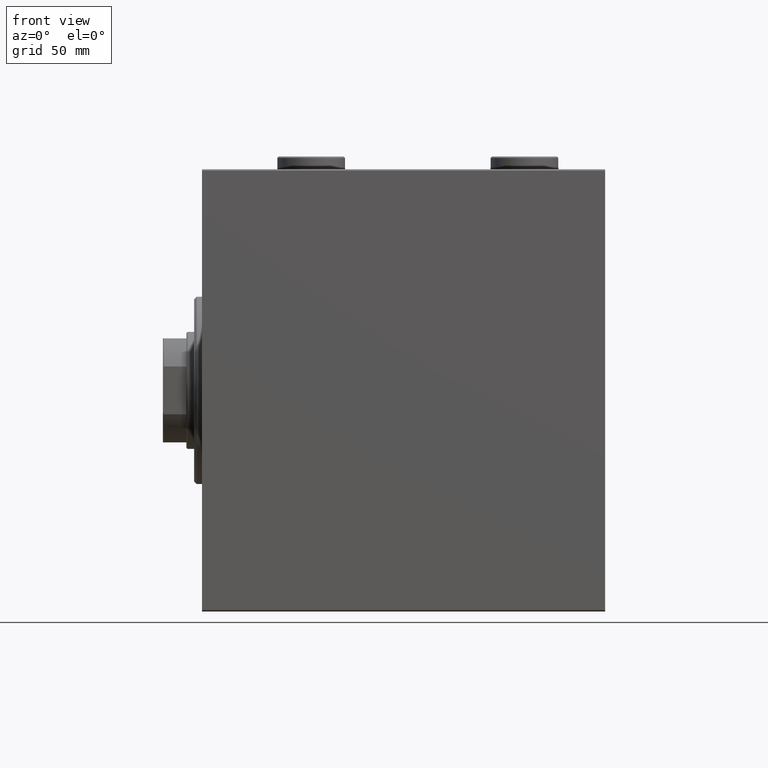
[diagram: clean part render]
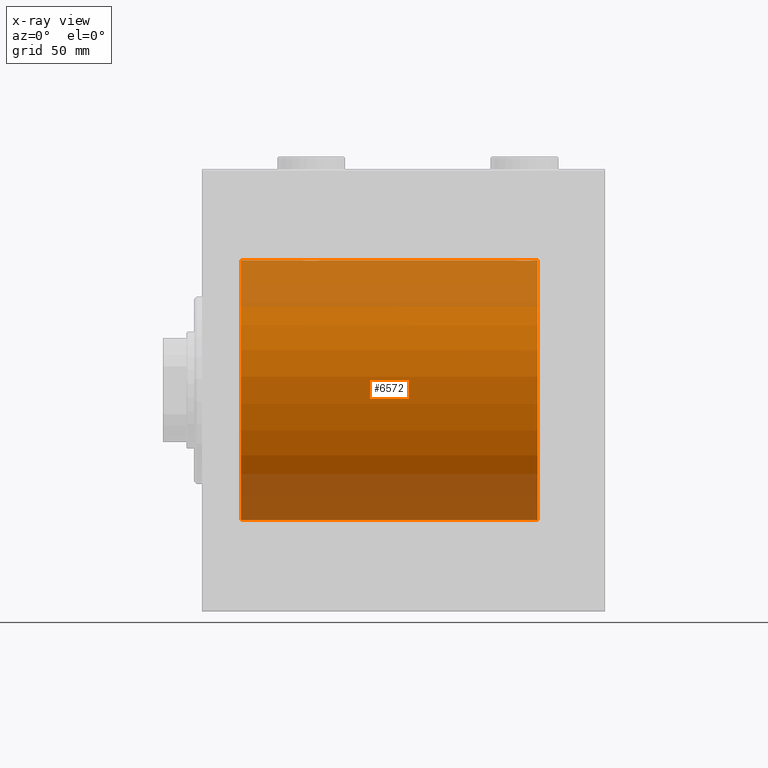
[diagram: x-ray — body ghosted, one internal face saturated and labeled with its STEP entity id]
A machine part, front view, then the same camera in x-ray: the body is ghosted and one INTERNAL B-rep face — a face not visible from any outside direction — is saturated and labeled: STEP entity #6572.
In plain terms, the highlighted cylindrical surface (partial cylindrical patch) has radius 50 mm, axis along (-1, -0, -0).
Its self-contained STEP definition (entity closure, byte-faithful):
#107 = CARTESIAN_POINT ( 'NONE',  ( 119.9692020384465678, -1.375411031076060997, -49.98173289062309976 ) ) ;
#648 = CARTESIAN_POINT ( 'NONE',  ( 123.4400213230435099, -4.222042462213122072, 49.82145436824654183 ) ) ;
#854 = DIRECTION ( 'NONE',  ( 0.000000000000000000, 0.000000000000000000, 1.000000000000000000 ) ) ;
#1564 = CARTESIAN_POINT ( 'NONE',  ( 37.96727357902688738, -1.369753890039657085, 49.98188917176553048 ) ) ;
#1912 = VECTOR ( 'NONE', #5646, 1000.000000000000000 ) ;
#2056 = ORIENTED_EDGE ( 'NONE', *, *, #14008, .T. ) ;
#2358 = CARTESIAN_POINT ( 'NONE',  ( 45.20303561951990901, -2.807099414226270184, -49.92152599098507437 ) ) ;
#2453 = CARTESIAN_POINT ( 'NONE',  ( 126.1313639944615659, -3.687400765141528591, -49.86408552998298660 ) ) ;
#2480 = CARTESIAN_POINT ( 'NONE',  ( 46.25000000000001421, -0.2808785465865648034, 50.00000000000001421 ) ) ;
#2702 = AXIS2_PLACEMENT_3D ( 'NONE', #27348, #26658, #23673 ) ;
#2768 = EDGE_CURVE ( 'NONE', #31259, #23452, #31657, .T. ) ;
#2816 = CARTESIAN_POINT ( 'NONE',  ( 38.80078072038717352, -2.811461347331107419, -49.92127983148852621 ) ) ;
#3126 = CARTESIAN_POINT ( 'NONE',  ( 128.2500000000000000, -0.2773743941468452823, -50.00000000000000711 ) ) ;
#3202 = CARTESIAN_POINT ( 'NONE',  ( 119.7500000000000000, -2.480297015150644268E-23, 50.00000000000000000 ) ) ;
#3266 = EDGE_CURVE ( 'NONE', #12982, #15948, #35432, .T. ) ;
#3622 = DIRECTION ( 'NONE',  ( -1.000000000000000000, 0.000000000000000000, 0.000000000000000000 ) ) ;
#3777 = DIRECTION ( 'NONE',  ( 0.000000000000000000, 0.000000000000000000, 1.000000000000000000 ) ) ;
#3925 = DIRECTION ( 'NONE',  ( -1.000000000000000000, -0.000000000000000000, -0.000000000000000000 ) ) ;
#4113 = CARTESIAN_POINT ( 'NONE',  ( 127.1992192796128336, -2.811461347331102534, 49.92127983148852621 ) ) ;
#4578 = CARTESIAN_POINT ( 'NONE',  ( 126.5882021467620007, -3.382416624899781787, 49.88570010427956447 ) ) ;
#5031 = CARTESIAN_POINT ( 'NONE',  ( 37.75000000000001421, -0.2773743941468532759, 50.00000000000000711 ) ) ;
#5111 = CARTESIAN_POINT ( 'NONE',  ( 129.0000000000000000, 0.000000000000000000, 50.00000000000000000 ) ) ;
#5327 = ORIENTED_EDGE ( 'NONE', *, *, #32385, .T. ) ;
#5367 = CARTESIAN_POINT ( 'NONE',  ( 43.37333436579036317, -4.031616700143180410, -49.83731072121798888 ) ) ;
#5592 = CARTESIAN_POINT ( 'NONE',  ( 40.90262382120964446, -4.115209769591110067, -49.83039196709102470 ) ) ;
#5646 = DIRECTION ( 'NONE',  ( -1.000000000000000000, -0.000000000000000000, -0.000000000000000000 ) ) ;
#5713 = CARTESIAN_POINT ( 'NONE',  ( 40.89676703965783844, -4.113647494206490229, 49.83052139214891696 ) ) ;
#5835 = CARTESIAN_POINT ( 'NONE',  ( 38.18160751012128884, -1.886522330773416911, -49.96505190380066352 ) ) ;
#5927 = CARTESIAN_POINT ( 'NONE',  ( 127.2030356195199232, -2.807099414226285727, -49.92152599098507437 ) ) ;
#6060 = CARTESIAN_POINT ( 'NONE',  ( 39.41179785323799933, -3.382416624899781787, -49.88570010427956447 ) ) ;
#6118 = ORIENTED_EDGE ( 'NONE', *, *, #43158, .F. ) ;
#6572 = ADVANCED_FACE ( 'NONE', ( #21585 ), #34988, .F. ) ;
#6955 = VERTEX_POINT ( 'NONE', #17778 ) ;
#7129 = CARTESIAN_POINT ( 'NONE',  ( 119.7500000000000000, -0.2773743941468521657, 50.00000000000001421 ) ) ;
#7159 = ORIENTED_EDGE ( 'NONE', *, *, #2768, .T. ) ;
#7365 = CARTESIAN_POINT ( 'NONE',  ( 128.2224263552077730, -0.5587117664567089470, 49.99763378604803421 ) ) ;
#7372 = DIRECTION ( 'NONE',  ( -1.000000000000000000, -0.000000000000000000, -0.000000000000000000 ) ) ;
#7508 = CARTESIAN_POINT ( 'NONE',  ( 121.8736835512492149, -3.690299572754727642, -49.86386974736159772 ) ) ;
#7597 = CARTESIAN_POINT ( 'NONE',  ( 127.6860283212194958, -2.133925816755182225, 49.95498245321556396 ) ) ;
#7828 = ORIENTED_EDGE ( 'NONE', *, *, #3266, .T. ) ;
#7965 = CARTESIAN_POINT ( 'NONE',  ( 119.7775736447921986, -0.5587117664567315956, -49.99763378604802000 ) ) ;
#8364 = LINE ( 'NONE', #5111, #20900 ) ;
#8942 = VECTOR ( 'NONE', #7372, 1000.000000000000000 ) ;
#8964 = CARTESIAN_POINT ( 'NONE',  ( 45.81839248987871827, -1.886522330773423572, 49.96505190380066352 ) ) ;
#9076 = CARTESIAN_POINT ( 'NONE',  ( 46.22310752799000966, -0.5531336717328987351, -49.99769193709643389 ) ) ;
#9192 = CARTESIAN_POINT ( 'NONE',  ( 42.27724927037917979, -4.250219976861652427, 49.81902879621013369 ) ) ;
#9392 = CARTESIAN_POINT ( 'NONE',  ( 127.3788171726373548, -2.593114840406129940, -49.93325460257641168 ) ) ;
#9536 = CARTESIAN_POINT ( 'NONE',  ( 46.25000000000000000, 6.123233970928580774E-15, -50.00000000000000000 ) ) ;
#9632 = CARTESIAN_POINT ( 'NONE',  ( 123.7227507296208415, -4.250219976861655979, -49.81902879621013369 ) ) ;
#9658 = CARTESIAN_POINT ( 'NONE',  ( 41.44002132304353125, -4.222042462213131842, 49.82145436824653473 ) ) ;
#9692 = ORIENTED_EDGE ( 'NONE', *, *, #32682, .T. ) ;
#9786 = VECTOR ( 'NONE', #20143, 1000.000000000000000 ) ;
#9837 = LINE ( 'NONE', #34541, #39486 ) ;
#10832 = CARTESIAN_POINT ( 'NONE',  ( 128.1124970108033096, -1.108337267831486006, 49.98846998601263181 ) ) ;
#10837 = CARTESIAN_POINT ( 'NONE',  ( 129.0000000000000000, 6.123233995736766085E-15, -50.00000000000000000 ) ) ;
#10967 = AXIS2_PLACEMENT_3D ( 'NONE', #27609, #31293, #3777 ) ;
#11285 = ORIENTED_EDGE ( 'NONE', *, *, #21350, .T. ) ;
#11295 = CARTESIAN_POINT ( 'NONE',  ( 127.8183924898787183, -1.886522330773413358, 49.96505190380066352 ) ) ;
#11433 = CARTESIAN_POINT ( 'NONE',  ( 119.7499999999999858, -1.552464266337571260E-14, -50.00000000000000000 ) ) ;
#12867 = CARTESIAN_POINT ( 'NONE',  ( 127.6893715567938585, -2.128188802142362945, -49.95522967821975158 ) ) ;
#12895 = CARTESIAN_POINT ( 'NONE',  ( 44.58820214676200777, -3.382416624899783564, 49.88570010427956447 ) ) ;
#12982 = VERTEX_POINT ( 'NONE', #18694 ) ;
#13001 = CARTESIAN_POINT ( 'NONE',  ( 45.37881717263736192, -2.593114840406122390, -49.93325460257641168 ) ) ;
#13095 = CARTESIAN_POINT ( 'NONE',  ( 125.1032329603421545, -4.113647494206490229, -49.83052139214891696 ) ) ;
#13183 = CARTESIAN_POINT ( 'NONE',  ( 119.9672735790268376, -1.369753890039655975, 49.98188917176552337 ) ) ;
#13236 = CARTESIAN_POINT ( 'NONE',  ( 37.75000000000000711, -7.073857814331912646E-15, -50.00000000000000000 ) ) ;
#14008 = EDGE_CURVE ( 'NONE', #42344, #6955, #9837, .T. ) ;
#14216 = CARTESIAN_POINT ( 'NONE',  ( 122.6328935244542606, -4.033756670430865832, -49.83713703490974467 ) ) ;
#14990 = CARTESIAN_POINT ( 'NONE',  ( 123.7160471297329991, -4.249777379711403569, 49.81906655360197789 ) ) ;
#14996 = CARTESIAN_POINT ( 'NONE',  ( 15.00000000000000000, 6.123233995736766085E-15, -50.00000000000000000 ) ) ;
#15187 = B_SPLINE_CURVE_WITH_KNOTS ( 'NONE', 3,
 ( #3202, #7129, #17316, #21009, #13183, #17541, #42266, #24692, #21464, #36463, #43186, #39247, #17769, #32532, #31845, #648, #14990, #29290, #21922, #21694, #39015, #42954, #32074, #4578, #15217, #4113, #25607, #7597, #11295, #24921, #10832, #7365, #35550, #18217 ),
 .UNSPECIFIED., .F., .F.,
 ( 4, 2, 2, 2, 2, 2, 2, 2, 2, 2, 2, 2, 2, 2, 2, 2, 4 ),
 ( 0.01329343152928749543, 0.01412407817529626013, 0.01495472482130502483, 0.01578537146731378779, 0.01661601811332255249, 0.01744666475933131719, 0.01827731140534008189, 0.01910795805134884659, 0.01993860469735761129, 0.02076925134336637599, 0.02159989798937517885, 0.02243054463538398519, 0.02326119128139279152, 0.02409183792740159785, 0.02492248457341040419, 0.02575313121941921052, 0.02658377786542801685 ),
 .UNSPECIFIED. ) ;
#15217 = CARTESIAN_POINT ( 'NONE',  ( 126.8069783183931065, -3.203153387937318186, 49.89767833571684008 ) ) ;
#15284 = CIRCLE ( 'NONE', #2702, 50.00000000000000000 ) ;
#15671 = CARTESIAN_POINT ( 'NONE',  ( 38.17899418014773971, -1.881229021238130183, 49.96525240872482954 ) ) ;
#15948 = VERTEX_POINT ( 'NONE', #35358 ) ;
#16005 = CARTESIAN_POINT ( 'NONE',  ( 46.03272642097311973, -1.369753890039645983, -49.98188917176553048 ) ) ;
#16232 = CARTESIAN_POINT ( 'NONE',  ( 42.55997867695648296, -4.222042462213118519, -49.82145436824653473 ) ) ;
#16325 = CARTESIAN_POINT ( 'NONE',  ( 128.2500000000000000, 6.123233970923453178E-15, -50.00000000000000000 ) ) ;
#16464 = CARTESIAN_POINT ( 'NONE',  ( 43.88744739392799943, -3.818052230167712668, -49.85412671291930309 ) ) ;
#16561 = CARTESIAN_POINT ( 'NONE',  ( 125.3733343657903418, -4.031616700143195509, -49.83731072121799599 ) ) ;
#16588 = CARTESIAN_POINT ( 'NONE',  ( 44.80697831839309941, -3.203153387937326180, 49.89767833571684719 ) ) ;
#16670 = EDGE_CURVE ( 'NONE', #21734, #15948, #23215, .T. ) ;
#16692 = CARTESIAN_POINT ( 'NONE',  ( 44.59312720885956338, -3.378657745070617224, -49.88595615988430154 ) ) ;
#16811 = CARTESIAN_POINT ( 'NONE',  ( 38.62118282736263097, -2.593114840406133492, 49.93325460257641168 ) ) ;
#17071 = EDGE_CURVE ( 'NONE', #21734, #24695, #15187, .T. ) ;
#17316 = CARTESIAN_POINT ( 'NONE',  ( 119.7768924720099903, -0.5531336717329051744, 49.99769193709643389 ) ) ;
#17456 = CARTESIAN_POINT ( 'NONE',  ( 121.4117978532379709, -3.382416624899787561, -49.88570010427956447 ) ) ;
#17541 = CARTESIAN_POINT ( 'NONE',  ( 120.1789941801477539, -1.881229021238129073, 49.96525240872482243 ) ) ;
#17769 = CARTESIAN_POINT ( 'NONE',  ( 122.1125526060720148, -3.818052230167721994, 49.85412671291930309 ) ) ;
#17778 = CARTESIAN_POINT ( 'NONE',  ( 46.25000000000000000, 6.123233970928580774E-15, -50.00000000000000000 ) ) ;
#18217 = CARTESIAN_POINT ( 'NONE',  ( 128.2499999999999716, 4.902412868109812945E-15, 50.00000000000000000 ) ) ;
#18246 = CARTESIAN_POINT ( 'NONE',  ( 119.7499999999999858, -1.552464266337571260E-14, -50.00000000000000000 ) ) ;
#18357 = CARTESIAN_POINT ( 'NONE',  ( 120.8007807203871522, -2.811461347331123406, -49.92127983148851200 ) ) ;
#18694 = CARTESIAN_POINT ( 'NONE',  ( 37.75000000000000711, -2.480809774739037926E-23, 50.00000000000000000 ) ) ;
#18988 = VERTEX_POINT ( 'NONE', #43319 ) ;
#19084 = VECTOR ( 'NONE', #3925, 1000.000000000000000 ) ;
#19134 = CARTESIAN_POINT ( 'NONE',  ( 37.77689247201000455, -0.5531336717329051744, 49.99769193709643389 ) ) ;
#19362 = CARTESIAN_POINT ( 'NONE',  ( 45.68602832121950286, -2.133925816755187110, 49.95498245321557818 ) ) ;
#19471 = CARTESIAN_POINT ( 'NONE',  ( 37.75000000000001421, -0.2808785465865695774, -50.00000000000001421 ) ) ;
#19694 = CARTESIAN_POINT ( 'NONE',  ( 37.88750298919666903, -1.108337267831496886, -49.98846998601261760 ) ) ;
#19812 = CARTESIAN_POINT ( 'NONE',  ( 44.12631644875080639, -3.690299572754724533, 49.86386974736159772 ) ) ;
#19884 = B_SPLINE_CURVE_WITH_KNOTS ( 'NONE', 3,
 ( #9536, #26854, #9076, #34249, #16005, #37025, #23633, #13001, #2358, #23164, #16692, #37249, #16464, #5367, #30543, #16232, #37720, #37485, #23393, #5592, #31006, #27537, #23857, #6060, #27312, #2816, #30079, #45108, #5835, #30770, #19694, #30310, #19471, #13236 ),
 .UNSPECIFIED., .F., .F.,
 ( 4, 2, 2, 2, 2, 2, 2, 2, 2, 2, 2, 2, 2, 2, 2, 2, 4 ),
 ( 0.01329343152928756308, 0.01412407817529634686, 0.01495472482130513064, 0.01578537146731391269, 0.01661601811332269821, 0.01744666475933148025, 0.01827731140534026577, 0.01910795805134904782, 0.01993860469735782986, 0.02076925134336661538, 0.02159989798937540090, 0.02243054463538418294, 0.02326119128139296499, 0.02409183792740175051, 0.02492248457341053255, 0.02575313121941931460, 0.02658377786542810012 ),
 .UNSPECIFIED. ) ;
#20026 = CARTESIAN_POINT ( 'NONE',  ( 126.8115306651541658, -3.199146701881681487, -49.89793607725462010 ) ) ;
#20143 = DIRECTION ( 'NONE',  ( -1.000000000000000000, -0.000000000000000000, -0.000000000000000000 ) ) ;
#20286 = CARTESIAN_POINT ( 'NONE',  ( 41.71604712973302753, -4.249777379711412451, 49.81906655360197789 ) ) ;
#20900 = VECTOR ( 'NONE', #36538, 1000.000000000000000 ) ;
#21009 = CARTESIAN_POINT ( 'NONE',  ( 119.8856808669399072, -1.101350136471743735, 49.98862054280448319 ) ) ;
#21350 = EDGE_CURVE ( 'NONE', #6955, #26140, #19884, .T. ) ;
#21464 = CARTESIAN_POINT ( 'NONE',  ( 120.7969643804801052, -2.807099414226272405, 49.92152599098507437 ) ) ;
#21585 = FACE_OUTER_BOUND ( 'NONE', #26143, .T. ) ;
#21602 = CARTESIAN_POINT ( 'NONE',  ( 120.3139716787804758, -2.133925816755196880, -49.95498245321555686 ) ) ;
#21694 = CARTESIAN_POINT ( 'NONE',  ( 125.0973761787903555, -4.115209769591107403, 49.83039196709103891 ) ) ;
#21734 = VERTEX_POINT ( 'NONE', #42262 ) ;
#21922 = CARTESIAN_POINT ( 'NONE',  ( 124.5540856488014754, -4.222816005855207777, 49.82138837911247720 ) ) ;
#22067 = CARTESIAN_POINT ( 'NONE',  ( 120.1816075101212675, -1.886522330773437339, -49.96505190380065642 ) ) ;
#22603 = CARTESIAN_POINT ( 'NONE',  ( 37.75000000000000711, -2.480809774739037926E-23, 50.00000000000000000 ) ) ;
#22833 = CARTESIAN_POINT ( 'NONE',  ( 38.79696438048009099, -2.807099414226281731, 49.92152599098507437 ) ) ;
#23164 = CARTESIAN_POINT ( 'NONE',  ( 44.81153066515419425, -3.199146701881665500, -49.89793607725460589 ) ) ;
#23215 = LINE ( 'NONE', #37299, #1912 ) ;
#23278 = CARTESIAN_POINT ( 'NONE',  ( 43.09737617879038396, -4.115209769591117173, 49.83039196709102470 ) ) ;
#23393 = CARTESIAN_POINT ( 'NONE',  ( 41.44591435119853173, -4.222816005855206001, -49.82138837911246299 ) ) ;
#23452 = VERTEX_POINT ( 'NONE', #40702 ) ;
#23633 = CARTESIAN_POINT ( 'NONE',  ( 45.68937155679385853, -2.128188802142358949, -49.95522967821975158 ) ) ;
#23673 = DIRECTION ( 'NONE',  ( 0.000000000000000000, 0.000000000000000000, 1.000000000000000000 ) ) ;
#23726 = CARTESIAN_POINT ( 'NONE',  ( 123.4459143511985246, -4.222816005855221100, -49.82138837911247009 ) ) ;
#23751 = CARTESIAN_POINT ( 'NONE',  ( 45.37519984081967550, -2.597781786597470610, 49.93300953359122474 ) ) ;
#23857 = CARTESIAN_POINT ( 'NONE',  ( 39.87368355124922203, -3.690299572754720980, -49.86386974736159772 ) ) ;
#24121 = EDGE_CURVE ( 'NONE', #31259, #45226, #15284, .T. ) ;
#24610 = CARTESIAN_POINT ( 'NONE',  ( 122.1178295051555551, -3.820681512513399269, -49.85392475515401145 ) ) ;
#24692 = CARTESIAN_POINT ( 'NONE',  ( 120.6211828273626026, -2.593114840406131716, 49.93325460257638326 ) ) ;
#24695 = VERTEX_POINT ( 'NONE', #37723 ) ;
#24921 = CARTESIAN_POINT ( 'NONE',  ( 128.0307979615534464, -1.375411031076037460, 49.98173289062309976 ) ) ;
#25066 = CARTESIAN_POINT ( 'NONE',  ( 122.9026238212096303, -4.115209769591122502, -49.83039196709102470 ) ) ;
#25607 = CARTESIAN_POINT ( 'NONE',  ( 127.3751998408196329, -2.597781786597467057, 49.93300953359122474 ) ) ;
#26140 = VERTEX_POINT ( 'NONE', #41208 ) ;
#26143 = EDGE_LOOP ( 'NONE', ( #44621, #7159, #9692, #2056, #11285, #37576, #5327, #35062, #7828, #40153, #26429, #6118 ) ) ;
#26429 = ORIENTED_EDGE ( 'NONE', *, *, #17071, .T. ) ;
#26658 = DIRECTION ( 'NONE',  ( -1.000000000000000000, 0.000000000000000000, 0.000000000000000000 ) ) ;
#26854 = CARTESIAN_POINT ( 'NONE',  ( 46.25000000000000000, -0.2773743941468464480, -50.00000000000000711 ) ) ;
#27200 = CARTESIAN_POINT ( 'NONE',  ( 39.86863600553844122, -3.687400765141535253, 49.86408552998298660 ) ) ;
#27203 = B_SPLINE_CURVE_WITH_KNOTS ( 'NONE', 3,
 ( #16325, #3126, #31314, #45418, #41957, #30404, #12867, #9392, #5927, #20026, #34113, #2453, #37815, #16561, #13095, #44740, #41285, #9632, #23726, #25066, #14216, #24610, #7508, #17456, #31532, #18357, #39159, #21602, #22067, #107, #35461, #7965, #28297, #11433 ),
 .UNSPECIFIED., .F., .F.,
 ( 4, 2, 2, 2, 2, 2, 2, 2, 2, 2, 2, 2, 2, 2, 2, 2, 4 ),
 ( 0.01329343152928756308, 0.01412407817529634686, 0.01495472482130513238, 0.01578537146731391616, 0.01661601811332270168, 0.01744666475933148719, 0.01827731140534026924, 0.01910795805134905476, 0.01993860469735783680, 0.02076925134336662232, 0.02159989798937540784, 0.02243054463538419335, 0.02326119128139297540, 0.02409183792740176092, 0.02492248457341054296, 0.02575313121941932848, 0.02658377786542811400 ),
 .UNSPECIFIED. ) ;
#27312 = CARTESIAN_POINT ( 'NONE',  ( 39.19302168160691480, -3.203153387937319962, -49.89767833571684719 ) ) ;
#27348 = CARTESIAN_POINT ( 'NONE',  ( 129.0000000000000000, 0.000000000000000000, 0.000000000000000000 ) ) ;
#27380 = DIRECTION ( 'NONE',  ( -1.000000000000000000, -0.000000000000000000, -0.000000000000000000 ) ) ;
#27427 = CARTESIAN_POINT ( 'NONE',  ( 40.62666563420963683, -4.031616700143192844, 49.83731072121799599 ) ) ;
#27537 = CARTESIAN_POINT ( 'NONE',  ( 40.11782950515556934, -3.820681512513381506, -49.85392475515401145 ) ) ;
#27609 = CARTESIAN_POINT ( 'NONE',  ( 129.0000000000000000, 0.000000000000000000, 0.000000000000000000 ) ) ;
#27962 = LINE ( 'NONE', #42078, #9786 ) ;
#28297 = CARTESIAN_POINT ( 'NONE',  ( 119.7499999999999858, -0.2808785465865775155, -50.00000000000001421 ) ) ;
#29290 = CARTESIAN_POINT ( 'NONE',  ( 124.2772492703791727, -4.250219976861645321, 49.81902879621014790 ) ) ;
#29894 = CARTESIAN_POINT ( 'NONE',  ( 129.0000000000000000, 6.123233995736766085E-15, -50.00000000000000000 ) ) ;
#29961 = CARTESIAN_POINT ( 'NONE',  ( 46.22242635520780851, -0.5587117664567118336, 49.99763378604802000 ) ) ;
#30079 = CARTESIAN_POINT ( 'NONE',  ( 38.62480015918034582, -2.597781786597465725, -49.93300953359122474 ) ) ;
#30310 = CARTESIAN_POINT ( 'NONE',  ( 37.77757364479220570, -0.5587117664567219366, -49.99763378604802000 ) ) ;
#30404 = CARTESIAN_POINT ( 'NONE',  ( 127.8210058198522603, -1.881229021238124632, -49.96525240872482954 ) ) ;
#30543 = CARTESIAN_POINT ( 'NONE',  ( 43.10323296034216156, -4.113647494206476907, -49.83052139214892406 ) ) ;
#30662 = CARTESIAN_POINT ( 'NONE',  ( 42.55408564880149669, -4.222816005855214883, 49.82138837911247009 ) ) ;
#30770 = CARTESIAN_POINT ( 'NONE',  ( 37.96920203844656783, -1.375411031076042789, -49.98173289062309976 ) ) ;
#31006 = CARTESIAN_POINT ( 'NONE',  ( 40.63289352445426772, -4.033756670430848068, -49.83713703490974467 ) ) ;
#31259 = VERTEX_POINT ( 'NONE', #29894 ) ;
#31293 = DIRECTION ( 'NONE',  ( -1.000000000000000000, -0.000000000000000000, -0.000000000000000000 ) ) ;
#31314 = CARTESIAN_POINT ( 'NONE',  ( 128.2231075279900381, -0.5531336717328986241, -49.99769193709643389 ) ) ;
#31532 = CARTESIAN_POINT ( 'NONE',  ( 121.1930216816068935, -3.203153387937336394, -49.89767833571684719 ) ) ;
#31657 = LINE ( 'NONE', #42531, #19084 ) ;
#31845 = CARTESIAN_POINT ( 'NONE',  ( 122.8967670396578598, -4.113647494206484012, 49.83052139214893117 ) ) ;
#32074 = CARTESIAN_POINT ( 'NONE',  ( 126.1263164487507709, -3.690299572754721869, 49.86386974736159061 ) ) ;
#32385 = EDGE_CURVE ( 'NONE', #39756, #18988, #43558, .T. ) ;
#32500 = CARTESIAN_POINT ( 'NONE',  ( 15.00000000000000000, 0.000000000000000000, 0.000000000000000000 ) ) ;
#32532 = CARTESIAN_POINT ( 'NONE',  ( 122.6266656342096582, -4.031616700143189291, 49.83731072121800310 ) ) ;
#32682 = EDGE_CURVE ( 'NONE', #23452, #42344, #27203, .T. ) ;
#33222 = CARTESIAN_POINT ( 'NONE',  ( 37.88568086693992143, -1.101350136471744845, 49.98862054280448319 ) ) ;
#33447 = CARTESIAN_POINT ( 'NONE',  ( 46.11249701080335228, -1.108337267831489115, 49.98846998601261760 ) ) ;
#33669 = CARTESIAN_POINT ( 'NONE',  ( 39.40687279114045083, -3.378657745070629659, 49.88595615988430154 ) ) ;
#33907 = CARTESIAN_POINT ( 'NONE',  ( 46.03079796155342507, -1.375411031076046786, 49.98173289062309976 ) ) ;
#34113 = CARTESIAN_POINT ( 'NONE',  ( 126.5931272088595705, -3.378657745070619445, -49.88595615988430154 ) ) ;
#34249 = CARTESIAN_POINT ( 'NONE',  ( 46.11431913306007857, -1.101350136471736629, -49.98862054280448319 ) ) ;
#34406 = CARTESIAN_POINT ( 'NONE',  ( 129.0000000000000000, 0.000000000000000000, 50.00000000000000000 ) ) ;
#34541 = CARTESIAN_POINT ( 'NONE',  ( 129.0000000000000000, 6.123233995736766085E-15, -50.00000000000000000 ) ) ;
#34988 = CYLINDRICAL_SURFACE ( 'NONE', #10967, 50.00000000000000000 ) ;
#35062 = ORIENTED_EDGE ( 'NONE', *, *, #41237, .F. ) ;
#35358 = CARTESIAN_POINT ( 'NONE',  ( 46.25000000000000000, 5.695507803017738218E-16, 50.00000000000000000 ) ) ;
#35432 = B_SPLINE_CURVE_WITH_KNOTS ( 'NONE', 3,
 ( #22603, #5031, #19134, #33222, #1564, #15671, #44311, #16811, #22833, #37365, #33669, #27200, #37137, #27427, #5713, #9658, #20286, #9192, #30662, #23278, #40847, #37606, #19812, #12895, #16588, #44766, #23751, #19362, #8964, #33907, #33447, #29961, #2480, #41073 ),
 .UNSPECIFIED., .F., .F.,
 ( 4, 2, 2, 2, 2, 2, 2, 2, 2, 2, 2, 2, 2, 2, 2, 2, 4 ),
 ( 0.01329343152928754226, 0.01412407817529632605, 0.01495472482130511156, 0.01578537146731389534, 0.01661601811332268086, 0.01744666475933146638, 0.01827731140534024842, 0.01910795805134903394, 0.01993860469735781599, 0.02076925134336660150, 0.02159989798937538702, 0.02243054463538417254, 0.02326119128139295458, 0.02409183792740174010, 0.02492248457341052215, 0.02575313121941930766, 0.02658377786542809318 ),
 .UNSPECIFIED. ) ;
#35461 = CARTESIAN_POINT ( 'NONE',  ( 119.8875029891966335, -1.108337267831507766, -49.98846998601261760 ) ) ;
#35550 = CARTESIAN_POINT ( 'NONE',  ( 128.2500000000000284, -0.2808785465865650810, 50.00000000000002132 ) ) ;
#36463 = CARTESIAN_POINT ( 'NONE',  ( 121.1884693348457915, -3.199146701881667276, 49.89793607725462010 ) ) ;
#36538 = DIRECTION ( 'NONE',  ( -1.000000000000000000, -0.000000000000000000, -0.000000000000000000 ) ) ;
#37025 = CARTESIAN_POINT ( 'NONE',  ( 45.82100581985226739, -1.881229021238118859, -49.96525240872482954 ) ) ;
#37137 = CARTESIAN_POINT ( 'NONE',  ( 40.11255260607201478, -3.818052230167724215, 49.85412671291930309 ) ) ;
#37249 = CARTESIAN_POINT ( 'NONE',  ( 44.13136399446156588, -3.687400765141522818, -49.86408552998298660 ) ) ;
#37299 = CARTESIAN_POINT ( 'NONE',  ( 129.0000000000000000, 0.000000000000000000, 50.00000000000000000 ) ) ;
#37365 = CARTESIAN_POINT ( 'NONE',  ( 39.18846933484581285, -3.199146701881677934, 49.89793607725460589 ) ) ;
#37485 = CARTESIAN_POINT ( 'NONE',  ( 41.72275072962083442, -4.250219976861640880, -49.81902879621014080 ) ) ;
#37576 = ORIENTED_EDGE ( 'NONE', *, *, #39713, .T. ) ;
#37606 = CARTESIAN_POINT ( 'NONE',  ( 43.88217049484443777, -3.820681512513388611, 49.85392475515401145 ) ) ;
#37720 = CARTESIAN_POINT ( 'NONE',  ( 42.28395287026698668, -4.249777379711400904, -49.81906655360197789 ) ) ;
#37723 = CARTESIAN_POINT ( 'NONE',  ( 128.2499999999999716, 4.902412868109812945E-15, 50.00000000000000000 ) ) ;
#37815 = CARTESIAN_POINT ( 'NONE',  ( 125.8874473939280136, -3.818052230167727323, -49.85412671291929598 ) ) ;
#39015 = CARTESIAN_POINT ( 'NONE',  ( 125.3671064755457536, -4.033756670430841851, 49.83713703490973757 ) ) ;
#39159 = CARTESIAN_POINT ( 'NONE',  ( 120.6248001591803387, -2.597781786597479936, -49.93300953359122474 ) ) ;
#39247 = CARTESIAN_POINT ( 'NONE',  ( 121.8686360055384768, -3.687400765141539249, 49.86408552998300081 ) ) ;
#39486 = VECTOR ( 'NONE', #27380, 1000.000000000000000 ) ;
#39713 = EDGE_CURVE ( 'NONE', #26140, #39756, #45501, .T. ) ;
#39756 = VERTEX_POINT ( 'NONE', #14996 ) ;
#40153 = ORIENTED_EDGE ( 'NONE', *, *, #16670, .F. ) ;
#40702 = CARTESIAN_POINT ( 'NONE',  ( 128.2500000000000000, 6.123233970923453178E-15, -50.00000000000000000 ) ) ;
#40847 = CARTESIAN_POINT ( 'NONE',  ( 43.36710647554575360, -4.033756670430856062, 49.83713703490974467 ) ) ;
#41073 = CARTESIAN_POINT ( 'NONE',  ( 46.25000000000000000, 5.695507803017738218E-16, 50.00000000000000000 ) ) ;
#41208 = CARTESIAN_POINT ( 'NONE',  ( 37.75000000000000711, -7.073857814331912646E-15, -50.00000000000000000 ) ) ;
#41237 = EDGE_CURVE ( 'NONE', #12982, #18988, #8364, .T. ) ;
#41285 = CARTESIAN_POINT ( 'NONE',  ( 124.2839528702669725, -4.249777379711414227, -49.81906655360197789 ) ) ;
#41957 = CARTESIAN_POINT ( 'NONE',  ( 128.0327264209731197, -1.369753890039650202, -49.98188917176553048 ) ) ;
#42078 = CARTESIAN_POINT ( 'NONE',  ( 129.0000000000000000, 0.000000000000000000, 50.00000000000000000 ) ) ;
#42262 = CARTESIAN_POINT ( 'NONE',  ( 119.7500000000000000, -2.480297015150644268E-23, 50.00000000000000000 ) ) ;
#42266 = CARTESIAN_POINT ( 'NONE',  ( 120.3106284432061273, -2.128188802142369163, 49.95522967821973737 ) ) ;
#42344 = VERTEX_POINT ( 'NONE', #18246 ) ;
#42531 = CARTESIAN_POINT ( 'NONE',  ( 129.0000000000000000, 6.123233995736766085E-15, -50.00000000000000000 ) ) ;
#42826 = AXIS2_PLACEMENT_3D ( 'NONE', #32500, #3622, #854 ) ;
#42954 = CARTESIAN_POINT ( 'NONE',  ( 125.8821704948444022, -3.820681512513372624, 49.85392475515399724 ) ) ;
#43158 = EDGE_CURVE ( 'NONE', #45226, #24695, #27962, .T. ) ;
#43186 = CARTESIAN_POINT ( 'NONE',  ( 121.4068727911404437, -3.378657745070632767, 49.88595615988429444 ) ) ;
#43319 = CARTESIAN_POINT ( 'NONE',  ( 15.00000000000000000, 0.000000000000000000, 50.00000000000000000 ) ) ;
#43558 = CIRCLE ( 'NONE', #42826, 50.00000000000000000 ) ;
#44311 = CARTESIAN_POINT ( 'NONE',  ( 38.31062844320614147, -2.128188802142369163, 49.95522967821975158 ) ) ;
#44621 = ORIENTED_EDGE ( 'NONE', *, *, #24121, .F. ) ;
#44740 = CARTESIAN_POINT ( 'NONE',  ( 124.5599786769564474, -4.222042462213132730, -49.82145436824653473 ) ) ;
#44766 = CARTESIAN_POINT ( 'NONE',  ( 45.19921927961282648, -2.811461347331111416, 49.92127983148852621 ) ) ;
#45108 = CARTESIAN_POINT ( 'NONE',  ( 38.31397167878049714, -2.133925816755183114, -49.95498245321557818 ) ) ;
#45226 = VERTEX_POINT ( 'NONE', #34406 ) ;
#45418 = CARTESIAN_POINT ( 'NONE',  ( 128.1143191330600359, -1.101350136471738850, -49.98862054280448319 ) ) ;
#45501 = LINE ( 'NONE', #10837, #8942 ) ;